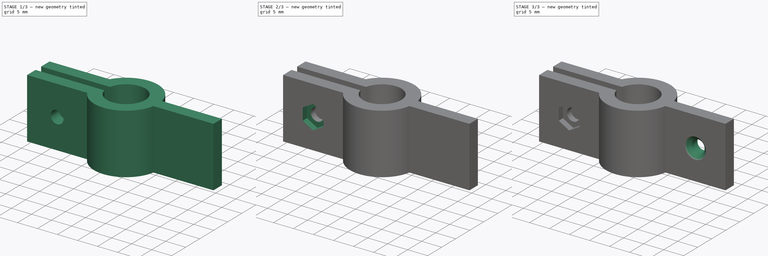
[diagram: build sequence overview — one tinted view per stage of 3, left to right]
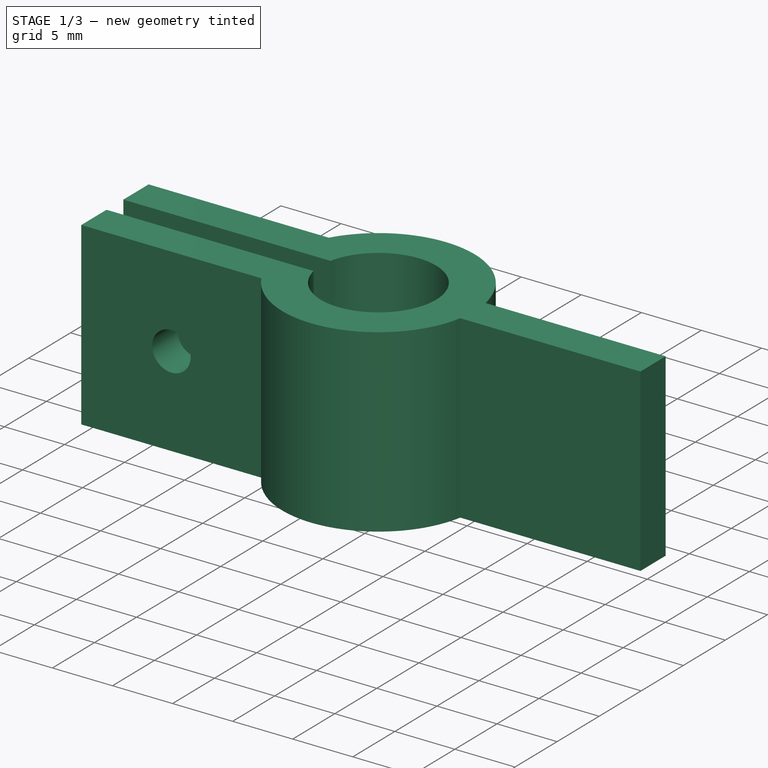
[diagram: stage 1 of 3 — iso view after this stage's code; geometry added in this stage tinted green]
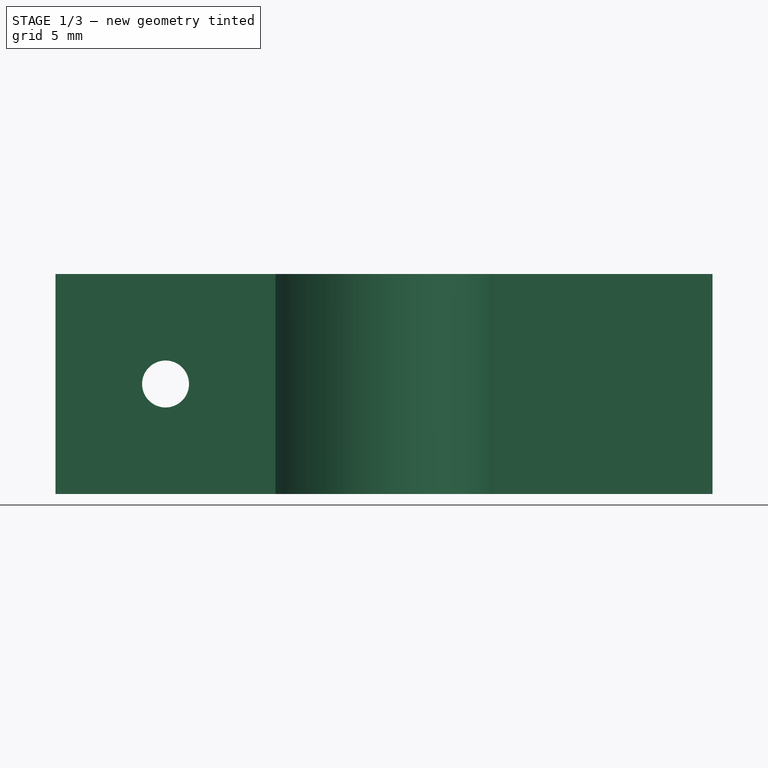
[diagram: stage 1 of 3 — front view after this stage's code; geometry added in this stage tinted green]
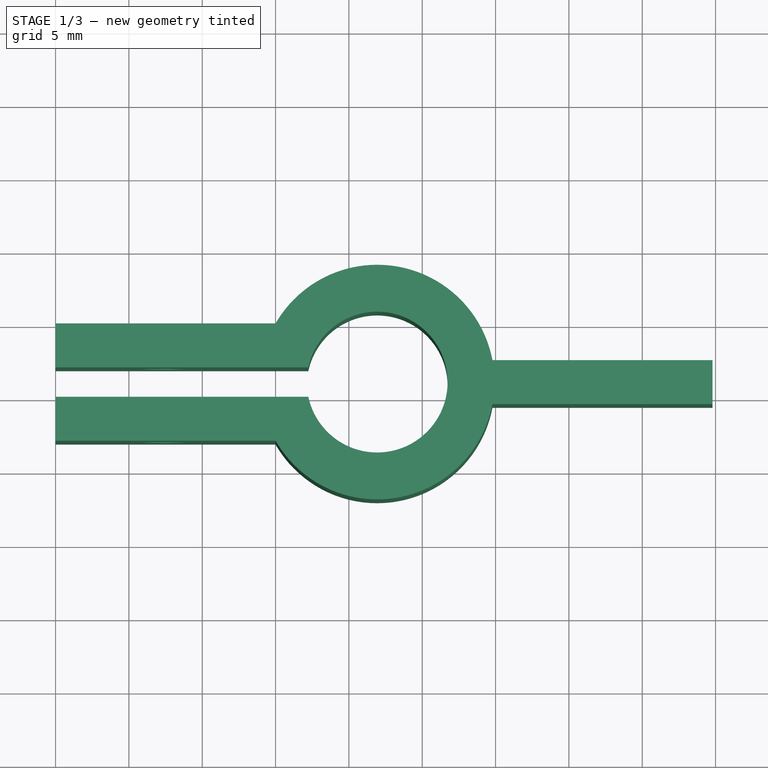
[diagram: stage 1 of 3 — top view after this stage's code; geometry added in this stage tinted green]
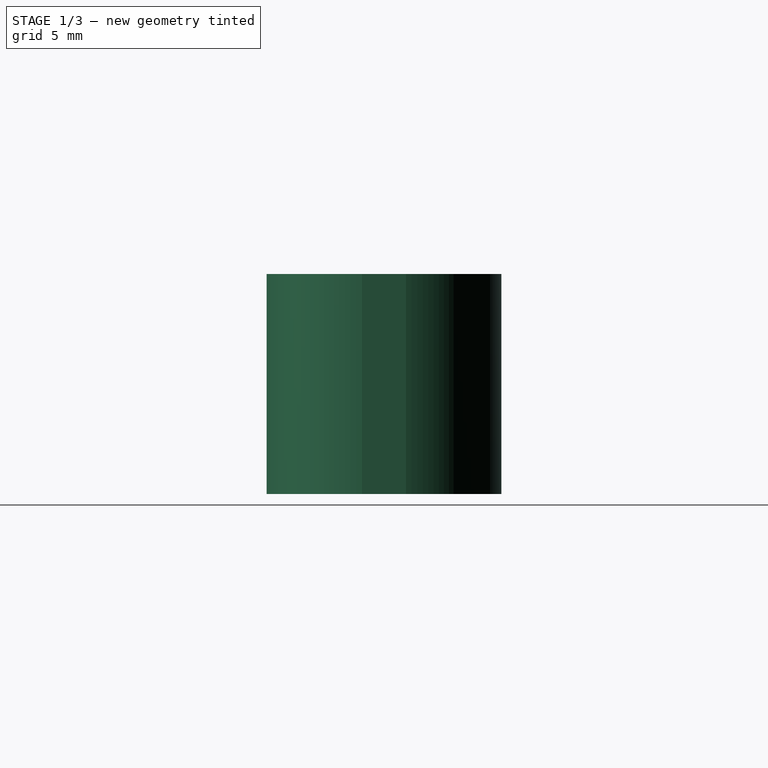
[diagram: stage 1 of 3 — right view after this stage's code; geometry added in this stage tinted green]
FCSTD DOCUMENT  (FreeCAD 0.19R24291 (Git))
Label: solar_panel_clip
License: All rights reserved
LicenseURL: http://en.wikipedia.org/wiki/All_rights_reserved
objects: Sketcher::SketchObject×4, PartDesign::Pocket×3, PartDesign::Pad×1, PartDesign::Chamfer×1, PartDesign::Body×1
note: 15 computed .brp shape members not serialized (recipe doc carries the construction recipe); baked Part::Feature solids carry a one-line shape summary decoded from their .brp

FEATURE [Sketcher::SketchObject] Sketch
  FullyConstrained = true
  MapMode = 5
  Support = -> [XY_Plane]
  sketch-geometry (15):
    g0: ArcOfCircle CenterX=21.9282 CenterY=6 CenterZ=0 NormalX=0 NormalY=0 NormalZ=1 AngleXU=0 Radius=4.8 StartAngle=3.35146 EndAngle=9.21491
    g1: LineSegment StartX=0 StartY=6 StartZ=0 EndX=44.7863 EndY=6 EndZ=0
    g2: LineSegment StartX=29.7863 StartY=7.5 StartZ=0 EndX=44.7863 EndY=7.5 EndZ=0
    g3: LineSegment StartX=44.7863 StartY=7.5 StartZ=0 EndX=44.7863 EndY=4.5 EndZ=0
    g4: LineSegment StartX=44.7863 StartY=4.5 StartZ=0 EndX=29.7863 EndY=4.5 EndZ=0
    g5: LineSegment StartX=15 StartY=10 StartZ=0 EndX=0 EndY=10 EndZ=0
    g6: LineSegment StartX=0 StartY=10 StartZ=0 EndX=0 EndY=7 EndZ=0
    g7: LineSegment StartX=0 StartY=7 StartZ=0 EndX=17.2335 EndY=7 EndZ=0
    g8: LineSegment StartX=17.2335 StartY=5 StartZ=0 EndX=0 EndY=5 EndZ=0
    g9: LineSegment StartX=0 StartY=5 StartZ=0 EndX=0 EndY=2 EndZ=0
    g10: LineSegment StartX=0 StartY=2 StartZ=0 EndX=15 EndY=2 EndZ=0
    g11: ArcOfCircle CenterX=21.9282 CenterY=6 CenterZ=0 NormalX=0 NormalY=0 NormalZ=1 AngleXU=0 Radius=8 StartAngle=3.66519 EndAngle=6.09457
    g12: ArcOfCircle CenterX=21.9282 CenterY=6 CenterZ=0 NormalX=0 NormalY=0 NormalZ=1 AngleXU=0 Radius=8 StartAngle=0.188616 EndAngle=2.61799
    g13: LineSegment StartX=17.2335 StartY=7 StartZ=0 EndX=17.2335 EndY=5 EndZ=0
    g14: LineSegment StartX=15 StartY=10 StartZ=0 EndX=15 EndY=2 EndZ=0
  constraints (45):
    c: Horizontal(g1)
    c: Horizontal(g2)
    c: Coincident(g3,g2)
    c: Coincident(g4,g3)
    c: Horizontal(g4)
    c: Horizontal(g5)
    c: Coincident(g6,g5)
    c: Vertical(g6)
    c: Coincident(g7,g6)
    c: Horizontal(g7)
    c: Horizontal(g8)
    c: Coincident(g9,g8)
    c: Vertical(g9)
    c: Coincident(g10,g9)
    c: Horizontal(g10)
    c: Equal(g6,g9)
    c: Equal(g7,g8)
    c: Equal(g10,g5)
    c: Radius(g0) = 4.8
    c: Symmetric(g3,g2,g1)
    c: DistanceX(g5,g5) = 15
    c: DistanceY(g6,g6) = 3
    c: DistanceY(g8,g6) = 2
    c: DistanceY(g3,g3) = 3
    c: DistanceX(g2,g2) = 15
    c: PointOnObject(g9,g-2)
    c: Coincident(g12,g5)
    c: PointOnObject(g6,g-2)
    c: Equal(g11,g12)
    c: Coincident(g11,g12)
    c: Coincident(g0,g11)
    c: Coincident(g12,g2)
    c: Coincident(g4,g11)
    c: Radius(g12) = 8
    c: PointOnObject(g1,g-2)
    c: DistanceY(g1,g6) = 1
    c: Coincident(g13,g0)
    c: Coincident(g13,g0)
    c: Vertical(g13)
    c: Coincident(g14,g5)
    c: Coincident(g14,g10)
    c: Coincident(g0,g7)
    c: Coincident(g11,g10)
    c: DistanceY(g-1,g1) = 6
    c: PointOnObject(g1,g3)
FEATURE [PartDesign::Pad] Pad
  Direction = (1,1,1)
  Length = 15
  Length2 = 100
  Profile = -> Sketch
  Type = 0
FEATURE [Sketcher::SketchObject] Sketch001
  FullyConstrained = true
  MapMode = 5
  Placement = pos=(0,10,0) rot=(0,0.707107,0.707107;3.14159rad)
  Support = -> [Pad]
  sketch-geometry (1):
    g0: Circle CenterX=-7.5 CenterY=7.5 CenterZ=0 NormalX=0 NormalY=0 NormalZ=1 AngleXU=0 Radius=1.6
  constraints (3):
    c: Radius(g0) = 1.6
    c: DistanceX(g0,g-1) = 7.5
    c: DistanceY(g-1,g0) = 7.5
FEATURE [PartDesign::Pocket] Pocket
  BaseFeature = -> Pad
  Length = 8
  Length2 = 100
  Profile = -> Sketch001
  Type = 0
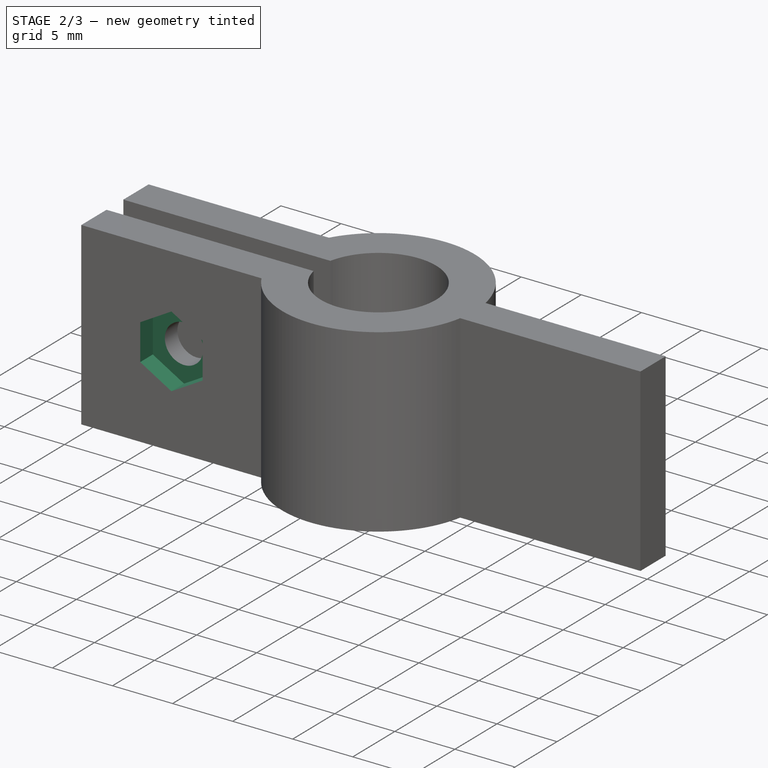
[diagram: stage 2 of 3 — iso view after this stage's code; geometry added in this stage tinted green]
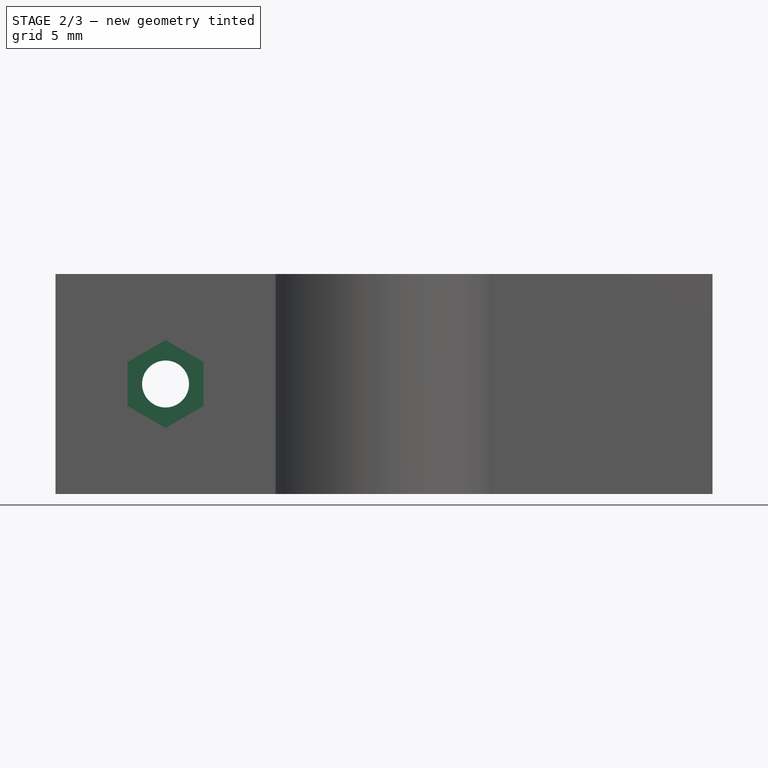
[diagram: stage 2 of 3 — front view after this stage's code; geometry added in this stage tinted green]
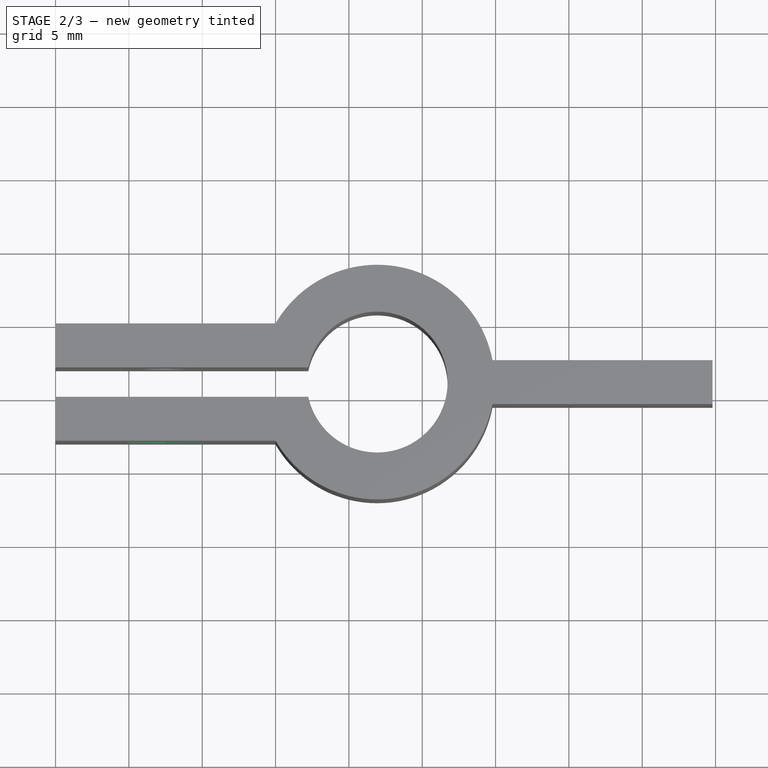
[diagram: stage 2 of 3 — top view after this stage's code; geometry added in this stage tinted green]
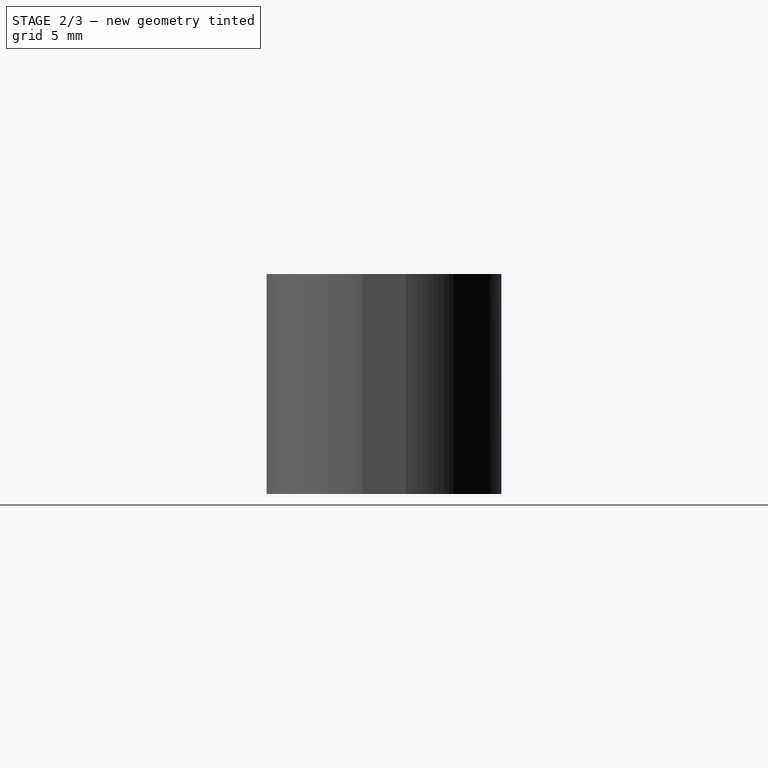
[diagram: stage 2 of 3 — right view after this stage's code; geometry added in this stage tinted green]
FEATURE [Sketcher::SketchObject] Sketch002
  FullyConstrained = true
  MapMode = 5
  Placement = pos=(0,2,0) rot=(1,0,0;1.5708rad)
  Support = -> [Pocket]
  sketch-geometry (7):
    g0: LineSegment StartX=10.0981 StartY=6 StartZ=0 EndX=10.0981 EndY=9 EndZ=0
    g1: LineSegment StartX=10.0981 StartY=9 StartZ=0 EndX=7.5 EndY=10.5 EndZ=0
    g2: LineSegment StartX=7.5 StartY=10.5 StartZ=0 EndX=4.90192 EndY=9 EndZ=0
    g3: LineSegment StartX=4.90192 StartY=9 StartZ=0 EndX=4.90192 EndY=6 EndZ=0
    g4: LineSegment StartX=4.90192 StartY=6 StartZ=0 EndX=7.5 EndY=4.5 EndZ=0
    g5: LineSegment StartX=7.5 StartY=4.5 StartZ=0 EndX=10.0981 EndY=6 EndZ=0
    g6: Circle CenterX=7.5 CenterY=7.5 CenterZ=0 NormalX=0 NormalY=0 NormalZ=1 AngleXU=0 Radius=3
  constraints (17):
    c: Coincident(g0,g1)
    c: Coincident(g1,g2)
    c: Coincident(g2,g3)
    c: Coincident(g3,g4)
    c: Coincident(g4,g5)
    c: Coincident(g5,g0)
    c: Equal(g0, g1-g5) x5
    c: PointOnObject(g0,g6)
    c: PointOnObject(g1,g6)
    c: PointOnObject(g2,g6)
    c: PointOnObject(g3,g6)
    c: PointOnObject(g4,g6)
    c: PointOnObject(g5,g6)
    c: Radius(g6) = 3
    c: DistanceX(g-1,g6) = 7.5
    c: DistanceY(g-1,g6) = 7.5
    c: Vertical(g3)
FEATURE [PartDesign::Pocket] Pocket001
  BaseFeature = -> Pocket
  Length = 1.5
  Length2 = 100
  Profile = -> Sketch002
  Type = 0
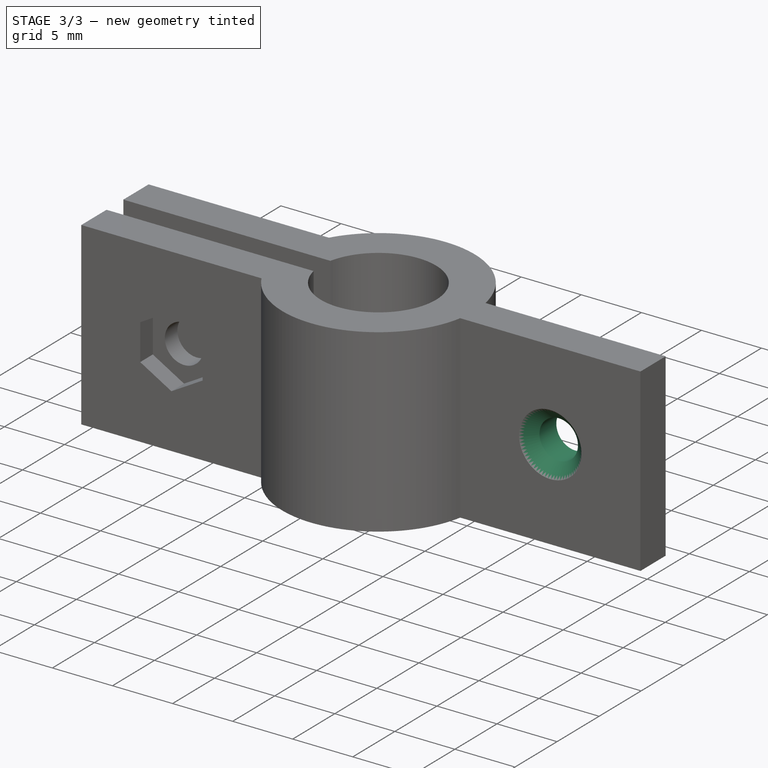
[diagram: stage 3 of 3 — iso view after this stage's code; geometry added in this stage tinted green]
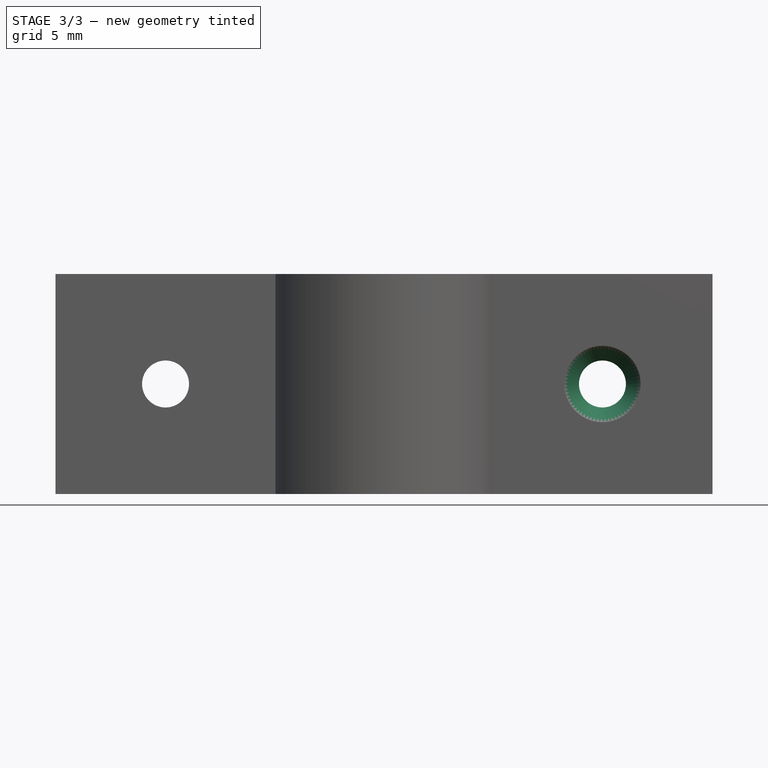
[diagram: stage 3 of 3 — front view after this stage's code; geometry added in this stage tinted green]
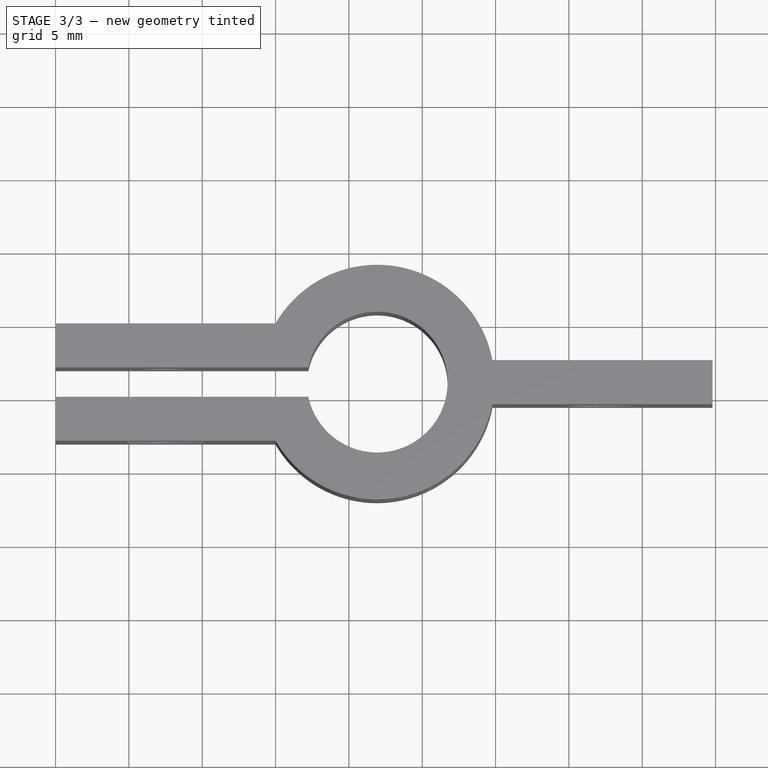
[diagram: stage 3 of 3 — top view after this stage's code; geometry added in this stage tinted green]
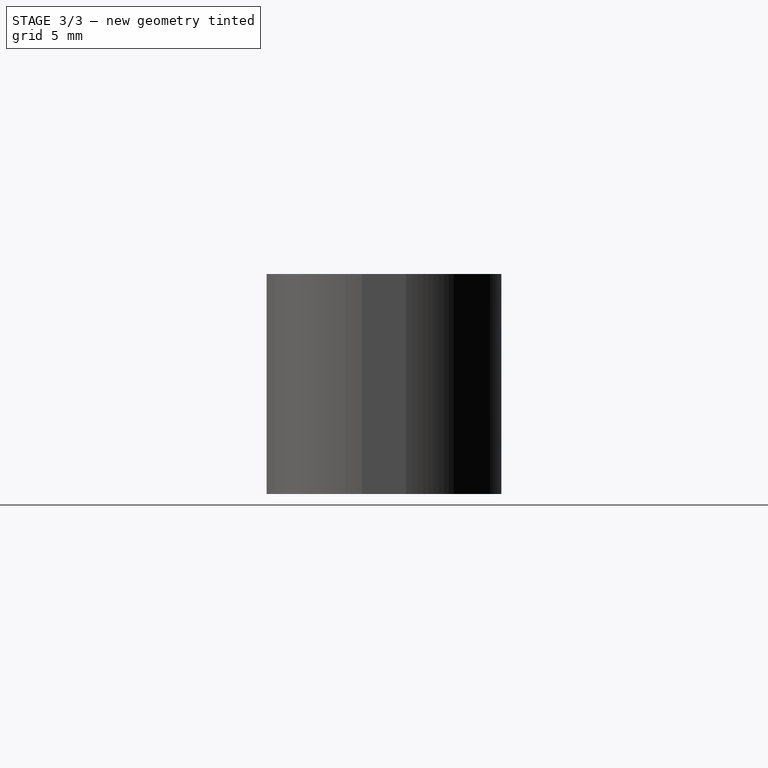
[diagram: stage 3 of 3 — right view after this stage's code; geometry added in this stage tinted green]
FEATURE [Sketcher::SketchObject] Sketch003
  ExternalGeometry = -> [Pocket001]
  FullyConstrained = true
  MapMode = 5
  Placement = pos=(0,4.5,0) rot=(1,0,0;1.5708rad)
  Support = -> [Pocket001]
  sketch-geometry (1):
    g0: Circle CenterX=37.2863 CenterY=7.5 CenterZ=0 NormalX=0 NormalY=0 NormalZ=1 AngleXU=0 Radius=1.6
  constraints (3):
    c: Radius(g0) = 1.6
    c: DistanceY(g-1,g0) = 7.5
    c: DistanceX(g0,g-3) = 7.5
FEATURE [PartDesign::Pocket] Pocket002
  BaseFeature = -> Pocket001
  Length = 5
  Length2 = 100
  Profile = -> Sketch003
  Type = 0
FEATURE [PartDesign::Chamfer] Chamfer
  Angle = 45
  Base = -> Pocket002 [Edge35,Edge43]
  BaseFeature = -> Pocket002
  ChamferType = 0
  FlipDirection = false
  Size = 1
  Size2 = 1
  SupportTransform = false
FEATURE [PartDesign::Body] Body
  Group = -> [Sketch,Pad,Sketch001,Pocket,Sketch002,Pocket001,Sketch003,Pocket002,Chamfer]
  Origin = -> Origin
  Tip = -> Chamfer
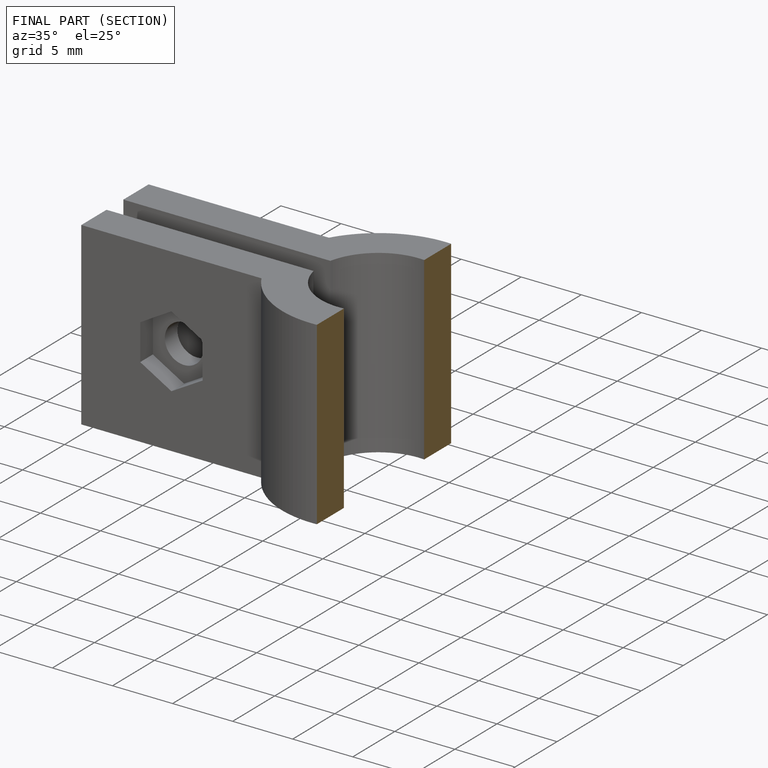
[diagram: finished part — half-section view (interior)]
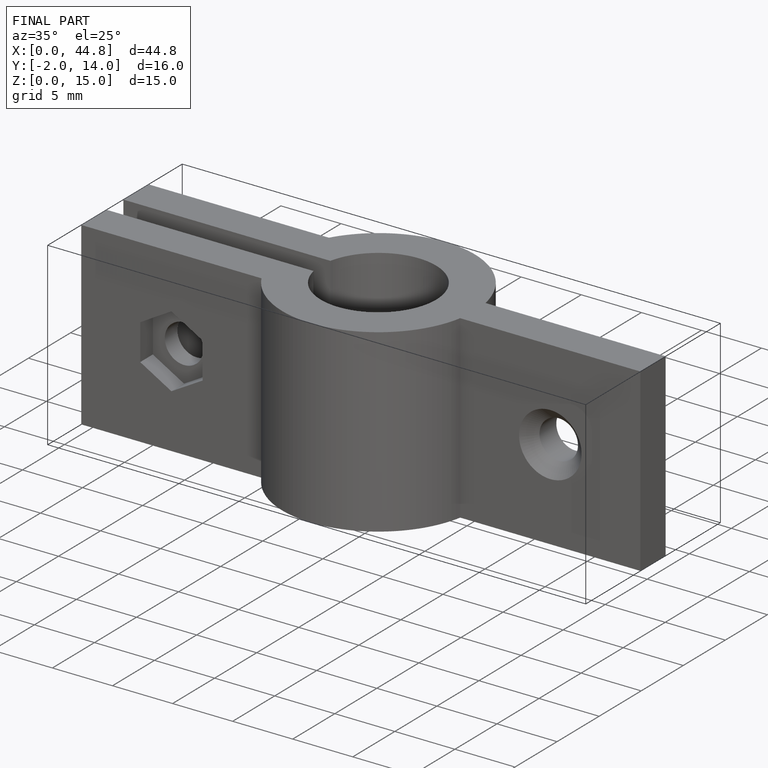
[diagram: finished part — iso view with bounding-box wireframe]
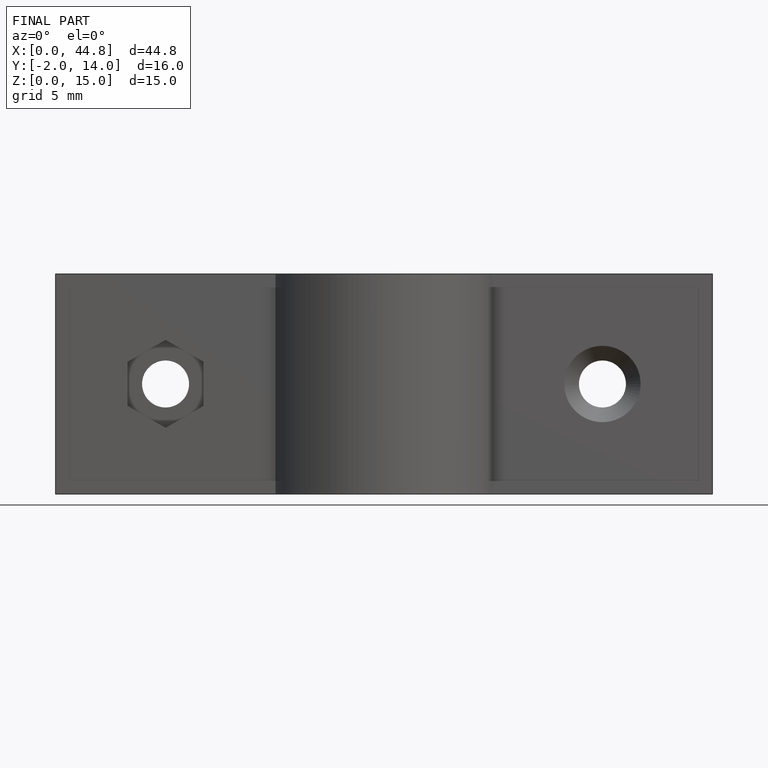
[diagram: finished part — front view with bounding-box wireframe]
